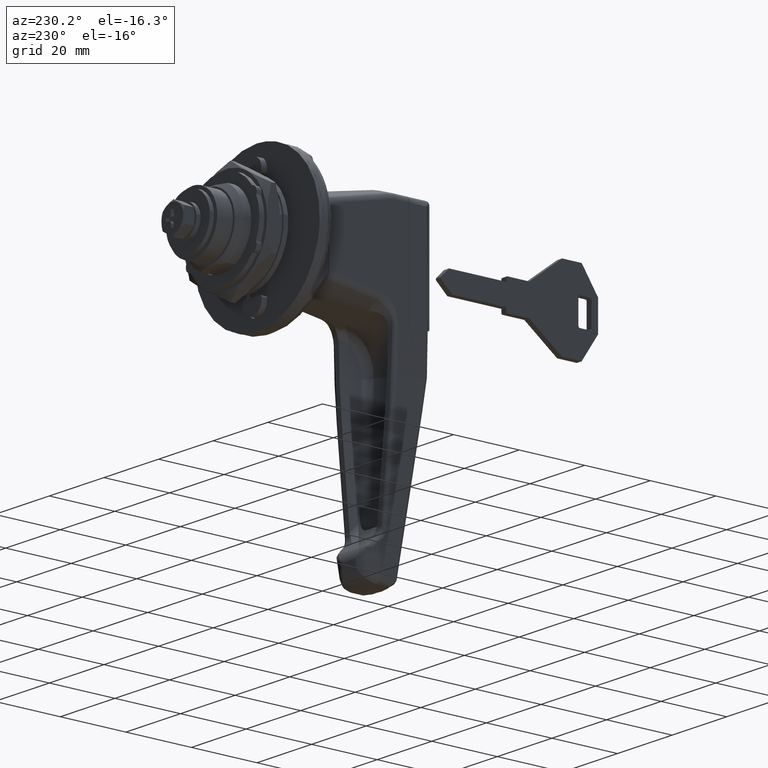
[diagram: clean part render]
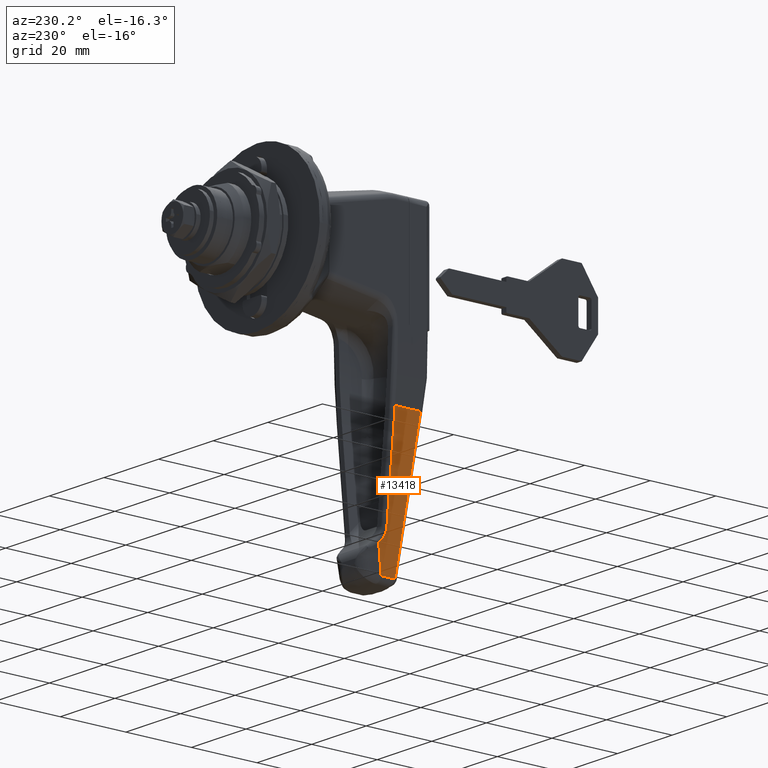
[diagram: same view with one face highlighted and labeled with its STEP entity id]
A machine part, auxiliary view. The second image highlights one B-rep face of the part: STEP entity #13418.
In plain terms, the highlighted face is a freeform B-spline surface patch.
Its self-contained STEP definition (entity closure, byte-faithful):
#6508=CARTESIAN_POINT('',(-31.374125220021551,6.954782547001460,-70.144151700801103));
#6509=VERTEX_POINT('',#6508);
#6583=CARTESIAN_POINT('',(-32.035533086328087,7.023986776613870,-69.482744141148686));
#6584=VERTEX_POINT('',#6583);
#6608=CARTESIAN_POINT('',(-32.035533086328087,7.023986776613870,-69.482744141148686));
#6609=CARTESIAN_POINT('',(-31.374125220021551,6.954782547001460,-70.144151700801103));
#6610=QUASI_UNIFORM_CURVE('',1,(#6608,#6609),.UNSPECIFIED.,.F.,.U.);
#6611=EDGE_CURVE('',#6584,#6509,#6610,.T.);
#6674=CARTESIAN_POINT('',(-33.500000000000000,7.393915925132730,-65.947209727477201));
#6675=VERTEX_POINT('',#6674);
#6707=CARTESIAN_POINT('',(-33.499999999999993,7.393915925132649,-65.947209727477187));
#6708=CARTESIAN_POINT('',(-33.499999870821050,7.177216426239351,-68.018278035638730));
#6709=CARTESIAN_POINT('',(-32.035533086328087,7.023986776613760,-69.482744141148899));
#6717=(BOUNDED_CURVE()B_SPLINE_CURVE(2,(#6707,#6708,#6709),.UNSPECIFIED.,.F.,.U.)CURVE()GEOMETRIC_REPRESENTATION_ITEM()QUASI_UNIFORM_CURVE()RATIONAL_B_SPLINE_CURVE((1.0,0.923879500089178,1.0))REPRESENTATION_ITEM(''));
#6718=EDGE_CURVE('',#6675,#6584,#6717,.T.);
#6737=CARTESIAN_POINT('',(-33.500000000000000,10.414127563133260,-37.082054803959700));
#6738=VERTEX_POINT('',#6737);
#6762=CARTESIAN_POINT('',(-33.500000000000000,10.414127563133260,-37.082054803959700));
#6763=CARTESIAN_POINT('',(-33.500000000000000,7.393915925132730,-65.947209727477201));
#6764=QUASI_UNIFORM_CURVE('',1,(#6762,#6763),.UNSPECIFIED.,.F.,.U.);
#6765=EDGE_CURVE('',#6738,#6675,#6764,.T.);
#8346=CARTESIAN_POINT('',(-37.016425169612937,6.150756441349800,-77.828493357584293));
#8347=VERTEX_POINT('',#8346);
#8372=CARTESIAN_POINT('',(-37.050978351486762,6.169431051286400,-77.650013974823793));
#8373=VERTEX_POINT('',#8372);
#8387=CARTESIAN_POINT('',(-37.016425169612937,6.150756441349800,-77.828493357584293));
#8388=CARTESIAN_POINT('',(-37.032994956016289,6.156880082743851,-77.769967704841505));
#8389=CARTESIAN_POINT('',(-37.044476270559180,6.163105682328387,-77.710467604173530));
#8390=CARTESIAN_POINT('',(-37.050978351486762,6.169431051286400,-77.650013974823793));
#8391=QUASI_UNIFORM_CURVE('',3,(#8387,#8388,#8389,#8390),.UNSPECIFIED.,.F.,.U.);
#8392=EDGE_CURVE('',#8347,#8373,#8391,.T.);
#8630=CARTESIAN_POINT('',(-33.0,6.150756441349800,-77.828493357584293));
#8631=VERTEX_POINT('',#8630);
#8653=CARTESIAN_POINT('',(-33.0,6.150756441349800,-77.828493357584293));
#8654=CARTESIAN_POINT('',(-37.016425169612937,6.150756441349800,-77.828493357584293));
#8655=QUASI_UNIFORM_CURVE('',1,(#8653,#8654),.UNSPECIFIED.,.F.,.U.);
#8656=EDGE_CURVE('',#8631,#8347,#8655,.T.);
#8820=CARTESIAN_POINT('',(-32.741215036508002,6.151969493352740,-77.816899821040010));
#8821=VERTEX_POINT('',#8820);
#8845=CARTESIAN_POINT('',(-32.741215036508002,6.151969493352790,-77.816899821040010));
#8846=CARTESIAN_POINT('',(-32.827301715076949,6.151160905593367,-77.824627759920631));
#8847=CARTESIAN_POINT('',(-32.913563320412429,6.150756441349800,-77.828493357584293));
#8848=CARTESIAN_POINT('',(-33.0,6.150756441349800,-77.828493357584293));
#8849=QUASI_UNIFORM_CURVE('',3,(#8845,#8846,#8847,#8848),.UNSPECIFIED.,.F.,.U.);
#8850=EDGE_CURVE('',#8821,#8631,#8849,.T.);
#9569=CARTESIAN_POINT('',(-41.257534945699298,10.414127563133260,-37.082054803959700));
#9570=VERTEX_POINT('',#9569);
#9796=CARTESIAN_POINT('',(-37.050978351486762,6.169431051286400,-77.650013974823793));
#9797=CARTESIAN_POINT('',(-39.242488927242078,8.301381287147310,-57.274265112371211));
#9798=CARTESIAN_POINT('',(-41.257534945699291,10.414127563133240,-37.082054803959693));
#9806=(BOUNDED_CURVE()B_SPLINE_CURVE(2,(#9796,#9797,#9798),.UNSPECIFIED.,.F.,.U.)CURVE()GEOMETRIC_REPRESENTATION_ITEM()QUASI_UNIFORM_CURVE()RATIONAL_B_SPLINE_CURVE((1.0,0.999342727148886,1.0))REPRESENTATION_ITEM(''));
#9807=EDGE_CURVE('',#8373,#9570,#9806,.T.);
#10180=CARTESIAN_POINT('',(-32.057670128264888,6.553376020177145,-73.980525760920145));
#10181=VERTEX_POINT('',#10180);
#10182=CARTESIAN_POINT('',(-32.057670128264867,6.553376020177143,-73.980525760920131));
#10183=CARTESIAN_POINT('',(-32.285518431012527,6.419573844569008,-75.259317114293410));
#10184=CARTESIAN_POINT('',(-32.513366733760272,6.285771668960876,-76.538108467666717));
#10185=CARTESIAN_POINT('',(-32.741215036508102,6.151969493352761,-77.816899821039982));
#10186=B_SPLINE_CURVE_WITH_KNOTS('',3,(#10182,#10183,#10184,#10185),.UNSPECIFIED.,.F.,.U.,(4,4),(0.584016777645038,0.654092265441520),.UNSPECIFIED.);
#10187=EDGE_CURVE('',#10181,#8821,#10186,.T.);
#10189=CARTESIAN_POINT('',(-31.374125220021551,6.954782547001460,-70.144151700801103));
#10190=CARTESIAN_POINT('',(-31.582750146681011,6.832269152183648,-71.315052467200090));
#10191=CARTESIAN_POINT('',(-31.791375073340500,6.709755757365759,-72.485953233599901));
#10192=CARTESIAN_POINT('',(-32.0,6.587242362547871,-73.656853999999697));
#10193=CARTESIAN_POINT('',(-32.019223376088291,6.575953581757628,-73.764744586973180));
#10194=CARTESIAN_POINT('',(-32.038446752176583,6.564664800967385,-73.872635173946648));
#10195=CARTESIAN_POINT('',(-32.057670128264867,6.553376020177143,-73.980525760920131));
#10196=B_SPLINE_CURVE_WITH_KNOTS('',3,(#10189,#10190,#10191,#10192,#10193,#10194,#10195),.UNSPECIFIED.,.F.,.U.,(4,3,4),(0.513941289848556,0.578104565702979,0.584016777645038),.UNSPECIFIED.);
#10197=EDGE_CURVE('',#6509,#10181,#10196,.T.);
#13397=CARTESIAN_POINT('',(-41.751210349867627,5.937801262187339,-79.863775971871291));
#13398=CARTESIAN_POINT('',(-41.751210349867627,10.627083047235780,-35.046769275260317));
#13399=CARTESIAN_POINT('',(-30.880447960197269,5.937801262187339,-79.863775971871291));
#13400=CARTESIAN_POINT('',(-30.880447960197269,10.627083047235780,-35.046769275260317));
#13401=B_SPLINE_SURFACE_WITH_KNOTS('',1,1,((#13397,#13399),(#13398,#13400)),.UNSPECIFIED.,.F.,.F.,.U.,(2,2),(2,2),(0.0,45.061662784496313),(0.0,10.870762389670359),.UNSPECIFIED.);
#13402=ORIENTED_EDGE('',*,*,#6718,.T.);
#13403=ORIENTED_EDGE('',*,*,#6611,.T.);
#13404=ORIENTED_EDGE('',*,*,#10197,.T.);
#13405=ORIENTED_EDGE('',*,*,#10187,.T.);
#13406=ORIENTED_EDGE('',*,*,#8850,.T.);
#13407=ORIENTED_EDGE('',*,*,#8656,.T.);
#13408=ORIENTED_EDGE('',*,*,#8392,.T.);
#13409=ORIENTED_EDGE('',*,*,#9807,.T.);
#13410=CARTESIAN_POINT('',(-33.500000000000000,10.414127563133260,-37.082054803959700));
#13411=CARTESIAN_POINT('',(-41.257534945699298,10.414127563133260,-37.082054803959700));
#13412=QUASI_UNIFORM_CURVE('',1,(#13410,#13411),.UNSPECIFIED.,.F.,.U.);
#13413=EDGE_CURVE('',#6738,#9570,#13412,.T.);
#13414=ORIENTED_EDGE('',*,*,#13413,.F.);
#13415=ORIENTED_EDGE('',*,*,#6765,.T.);
#13416=EDGE_LOOP('',(#13402,#13403,#13404,#13405,#13406,#13407,#13408,#13409,#13414,#13415));
#13417=FACE_OUTER_BOUND('',#13416,.T.);
#13418=ADVANCED_FACE('',(#13417),#13401,.T.);